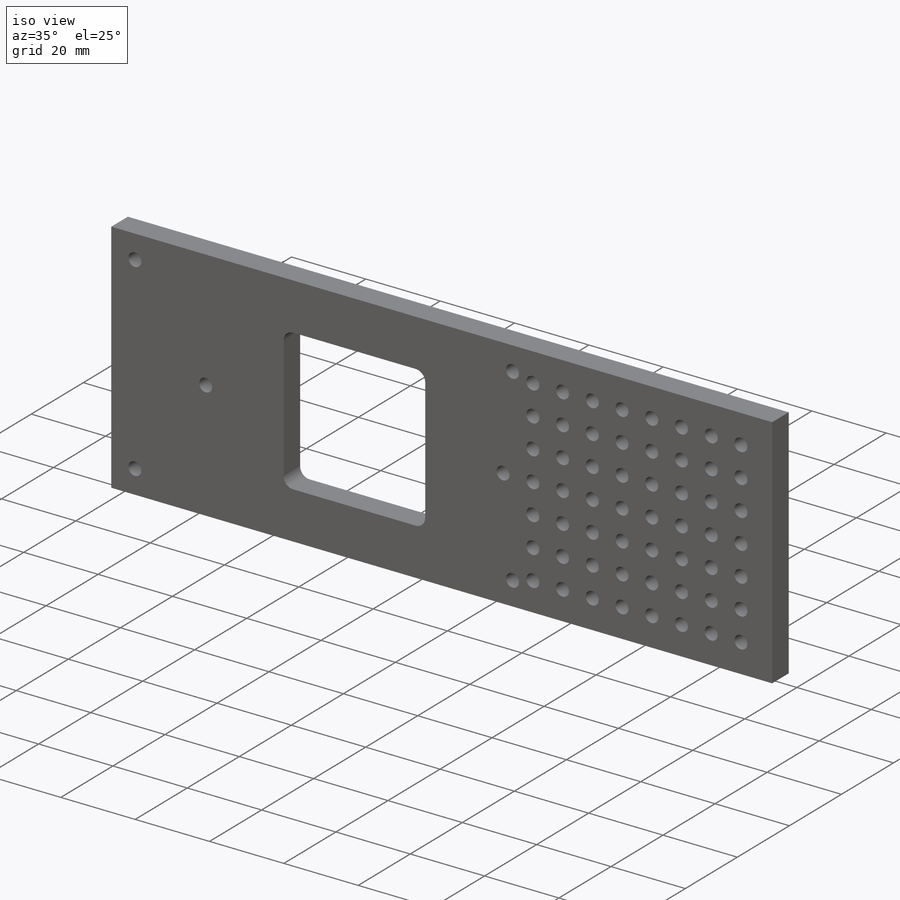
[diagram: iso view]
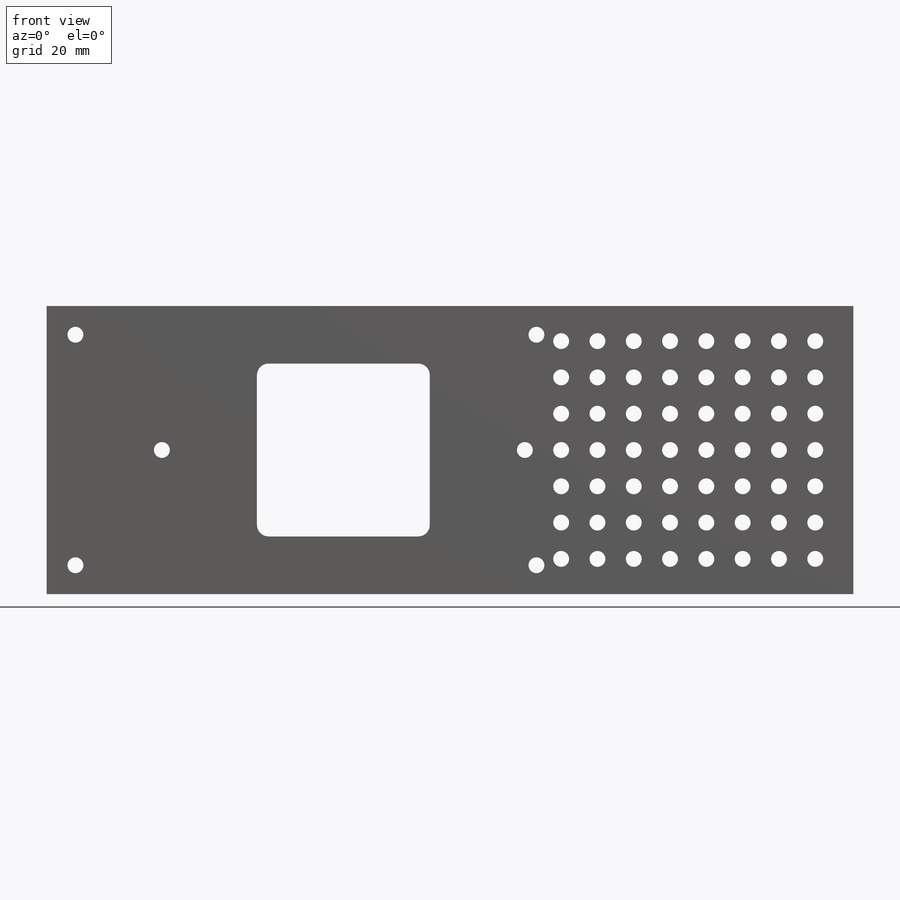
[diagram: front view]
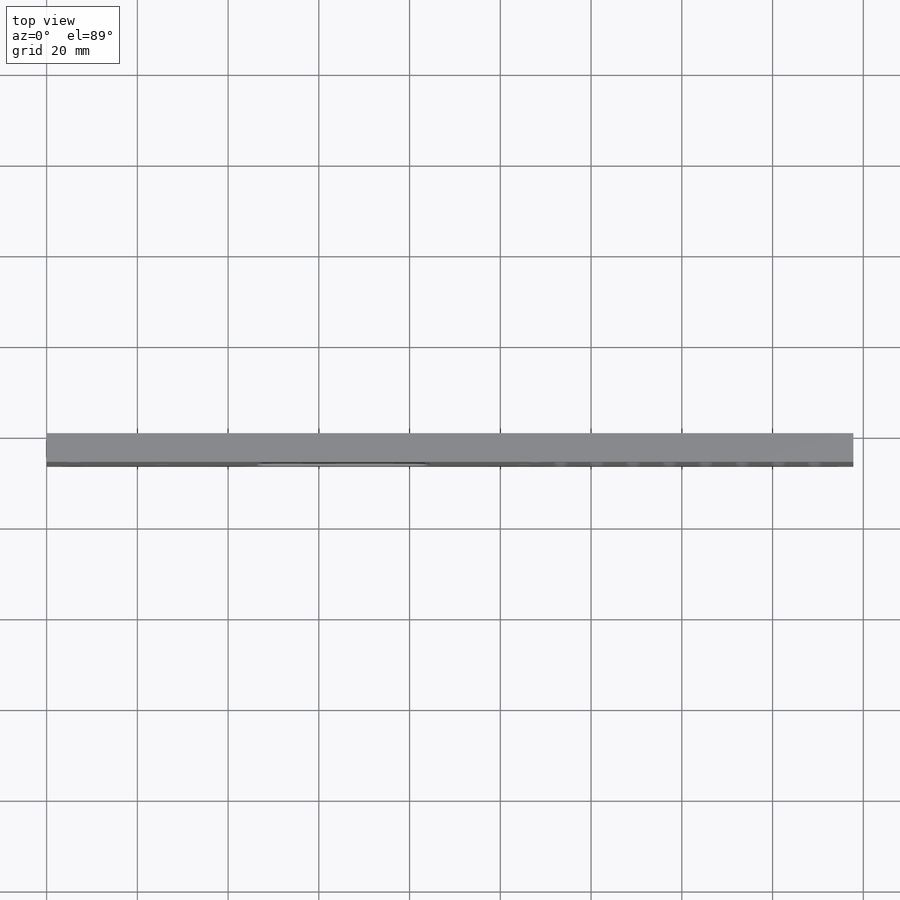
[diagram: top view]
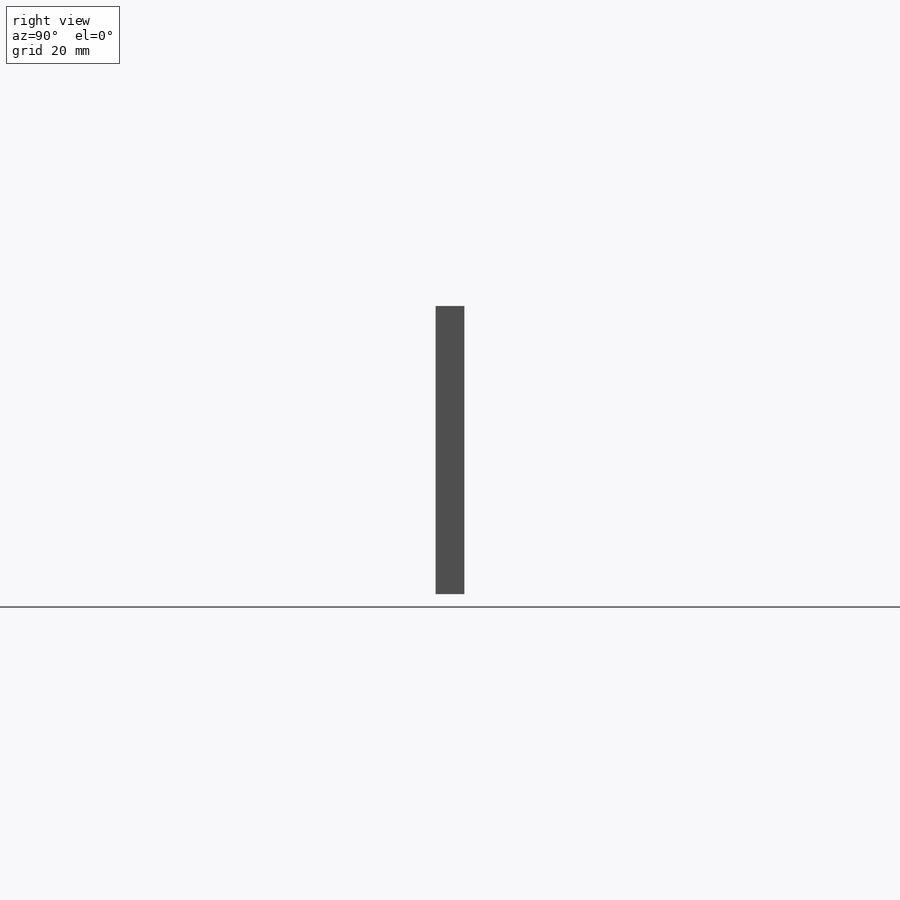
[diagram: right view]
SOLIDWORKS PART (.sldprt)
format: sldprt  version: not decoded by parser v0  size: 368,640 bytes
history: native  units: mm
features: sketch x5, cut_extrude x3, extrude x2, pattern_linear x2, material x1, fillet x1 (+13 scaffold rows collapsed)
feature tree (27):
  scaffold x13  (default folders/planes/origin — collapsed)
  material  "Pine"
  sketch  "Sketch2"  dims[D1=114.3mm D2=63.5mm]
  extrude  "Boss-Extrude1"  Depth=6.35mm
  sketch  "Sketch3"  dims[c1.D2=3.5mm c1.D4=3.5mm c1.D5=3.5mm c1.D1=80.0mm c2.D5=25.4mm c2.D3=6.35mm]
  cut_extrude  "Cut-Extrude1"  [1 undecoded]
  sketch  "Sketch4"  dims[c1.D1=177.8mm c1.D2=38.1mm c1.D3=~43.537252mm c2.D3=60.0deg c2.D1=177.8mm c2.D2=38.1mm]
  extrude  "Boss-Extrude2"  [1 undecoded]
  sketch  "Sketch5"  dims[D2=3.5mm D1=8.0mm]
  cut_extrude  "Cut-Extrude2"  [1 undecoded]
  pattern_linear  "LPattern1"  Count1=8 Count2=4 Spacing1=8mm Spacing2=8mm
  pattern_linear  "LPattern2"  Count1=8 Count2=4 Spacing1=8mm Spacing2=8mm
  sketch  "Sketch6"  dims[D1=38.1mm]
  cut_extrude  "Cut-Extrude3"  [1 undecoded]
  fillet  "Fillet1"  Radius=2.54mm
decode coverage: 9 of 13 modeling features carry decoded parameters
note: ~ marks probable driven/reference dimensions
note: 4 parameter values undecoded
summary: no parameter record found for 4 features
note: suppression state not decoded; provenance and decode notes live in map.json
